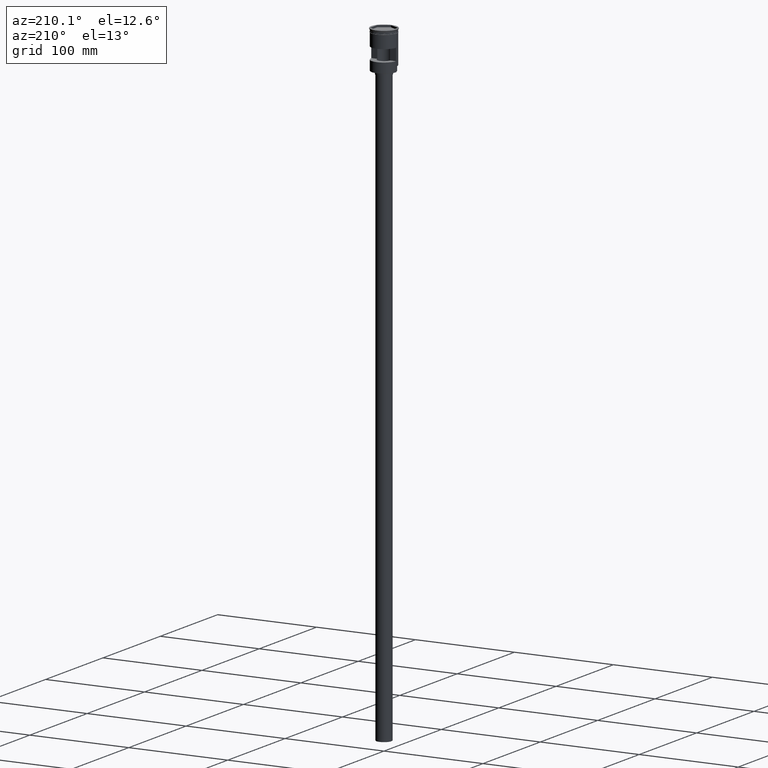
[diagram: clean part render]
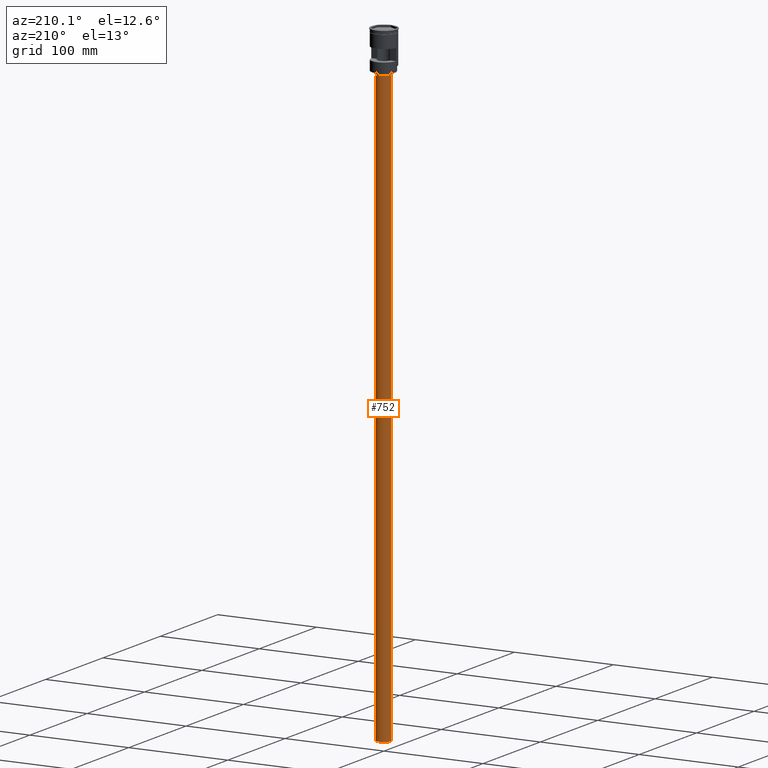
[diagram: same view with one face highlighted and labeled with its STEP entity id]
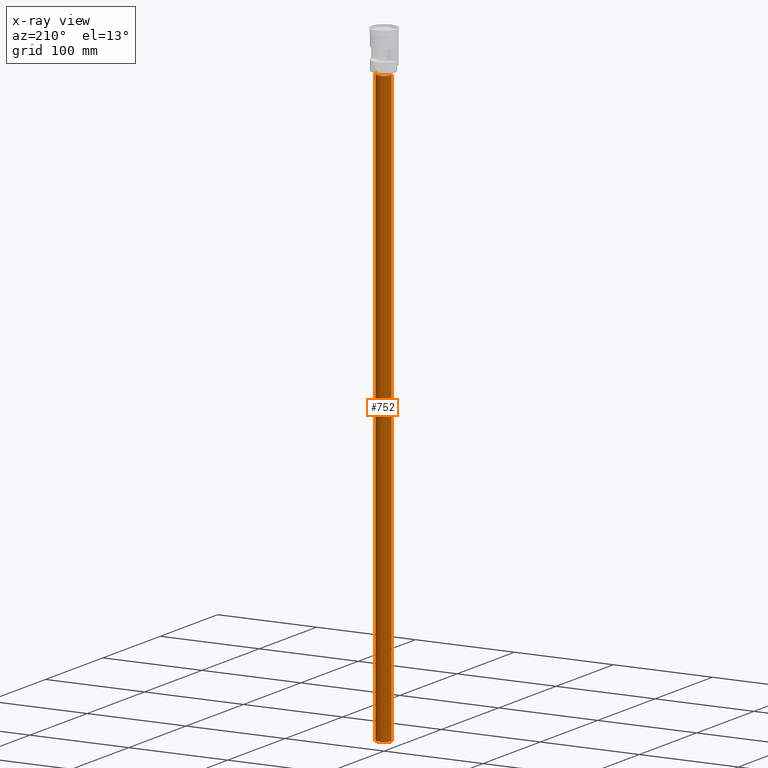
[diagram: x-ray of the same camera — body ghosted, the highlighted face saturated]
A machine part, auxiliary view. The second image highlights one B-rep face of the part: STEP entity #752.
The next image is the same camera in x-ray: the body ghosted, the highlighted face saturated — about 0% of this face is hidden behind the body in this view.
In plain terms, the highlighted cylindrical surface (edge-blend (fillet) strip) has radius 7.5 mm, axis along (-0, -0, 1).
Its self-contained STEP definition (entity closure, byte-faithful):
#68 = VERTEX_POINT ( 'NONE', #1385 ) ;
#91 = DIRECTION ( 'NONE',  ( -1.000000000000000000, 0.000000000000000000, 0.000000000000000000 ) ) ;
#105 = DIRECTION ( 'NONE',  ( -0.000000000000000000, -0.000000000000000000, 1.000000000000000000 ) ) ;
#136 = ORIENTED_EDGE ( 'NONE', *, *, #674, .F. ) ;
#188 = ORIENTED_EDGE ( 'NONE', *, *, #1524, .F. ) ;
#208 = CARTESIAN_POINT ( 'NONE',  ( 0.000000000000000000, 0.000000000000000000, -41.50000000000000000 ) ) ;
#216 = CARTESIAN_POINT ( 'NONE',  ( 7.500000000000000000, 0.000000000000000000, -638.5000000000000000 ) ) ;
#236 = VERTEX_POINT ( 'NONE', #426 ) ;
#322 = VECTOR ( 'NONE', #105, 1000.000000000000000 ) ;
#372 = DIRECTION ( 'NONE',  ( -0.000000000000000000, -0.000000000000000000, 1.000000000000000000 ) ) ;
#386 = AXIS2_PLACEMENT_3D ( 'NONE', #208, #1437, #91 ) ;
#413 = CIRCLE ( 'NONE', #386, 7.500000000000000000 ) ;
#426 = CARTESIAN_POINT ( 'NONE',  ( -7.500000000000000000, 9.184850993605147944E-16, -41.50000000000000000 ) ) ;
#469 = VERTEX_POINT ( 'NONE', #705 ) ;
#518 = AXIS2_PLACEMENT_3D ( 'NONE', #1274, #627, #1391 ) ;
#530 = EDGE_CURVE ( 'NONE', #68, #236, #1582, .T. ) ;
#578 = CARTESIAN_POINT ( 'NONE',  ( 0.000000000000000000, 0.000000000000000000, -638.5000000000000000 ) ) ;
#594 = CARTESIAN_POINT ( 'NONE',  ( -7.500000000000000000, 9.184850993605147944E-16, -638.5000000000000000 ) ) ;
#627 = DIRECTION ( 'NONE',  ( -0.000000000000000000, -0.000000000000000000, 1.000000000000000000 ) ) ;
#647 = ORIENTED_EDGE ( 'NONE', *, *, #530, .T. ) ;
#674 = EDGE_CURVE ( 'NONE', #68, #1506, #1508, .T. ) ;
#689 = FACE_OUTER_BOUND ( 'NONE', #964, .T. ) ;
#705 = CARTESIAN_POINT ( 'NONE',  ( 7.500000000000000000, 0.000000000000000000, -41.50000000000000000 ) ) ;
#720 = AXIS2_PLACEMENT_3D ( 'NONE', #578, #1073, #1577 ) ;
#752 = ADVANCED_FACE ( 'NONE', ( #689 ), #1261, .T. ) ;
#778 = VECTOR ( 'NONE', #372, 1000.000000000000000 ) ;
#964 = EDGE_LOOP ( 'NONE', ( #136, #647, #1556, #188 ) ) ;
#1073 = DIRECTION ( 'NONE',  ( 0.000000000000000000, 0.000000000000000000, -1.000000000000000000 ) ) ;
#1116 = CARTESIAN_POINT ( 'NONE',  ( 7.500000000000000000, 0.000000000000000000, -638.5000000000000000 ) ) ;
#1233 = LINE ( 'NONE', #216, #778 ) ;
#1258 = EDGE_CURVE ( 'NONE', #236, #469, #413, .T. ) ;
#1261 = CYLINDRICAL_SURFACE ( 'NONE', #518, 7.500000000000000000 ) ;
#1274 = CARTESIAN_POINT ( 'NONE',  ( 0.000000000000000000, 0.000000000000000000, -638.5000000000000000 ) ) ;
#1385 = CARTESIAN_POINT ( 'NONE',  ( -7.500000000000000000, 9.184850993605147944E-16, -638.5000000000000000 ) ) ;
#1391 = DIRECTION ( 'NONE',  ( 1.000000000000000000, 0.000000000000000000, 0.000000000000000000 ) ) ;
#1437 = DIRECTION ( 'NONE',  ( 0.000000000000000000, 0.000000000000000000, -1.000000000000000000 ) ) ;
#1506 = VERTEX_POINT ( 'NONE', #1116 ) ;
#1508 = CIRCLE ( 'NONE', #720, 7.500000000000000000 ) ;
#1524 = EDGE_CURVE ( 'NONE', #1506, #469, #1233, .T. ) ;
#1556 = ORIENTED_EDGE ( 'NONE', *, *, #1258, .T. ) ;
#1577 = DIRECTION ( 'NONE',  ( -1.000000000000000000, 0.000000000000000000, 0.000000000000000000 ) ) ;
#1582 = LINE ( 'NONE', #594, #322 ) ;